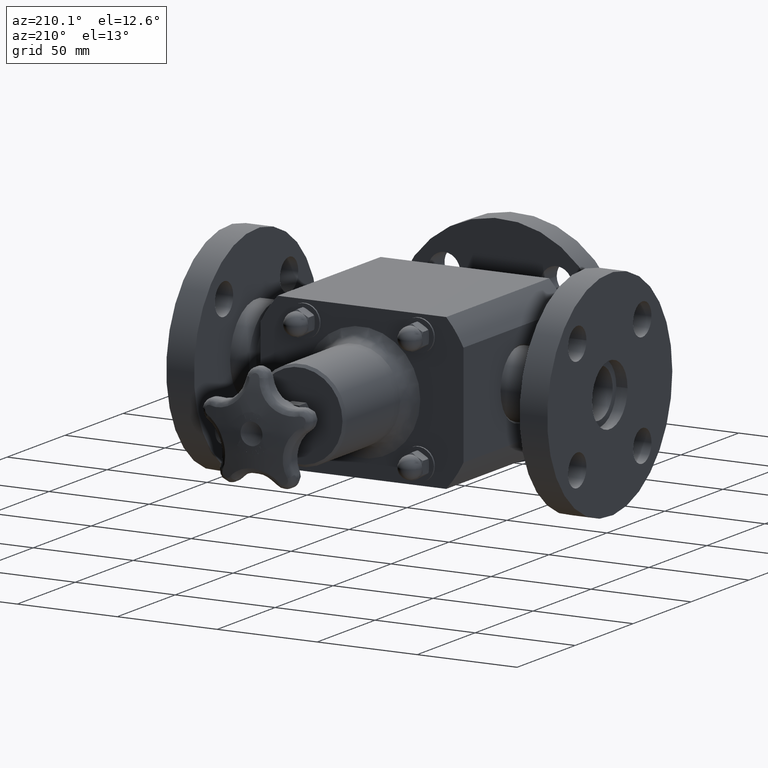
[diagram: clean part render]
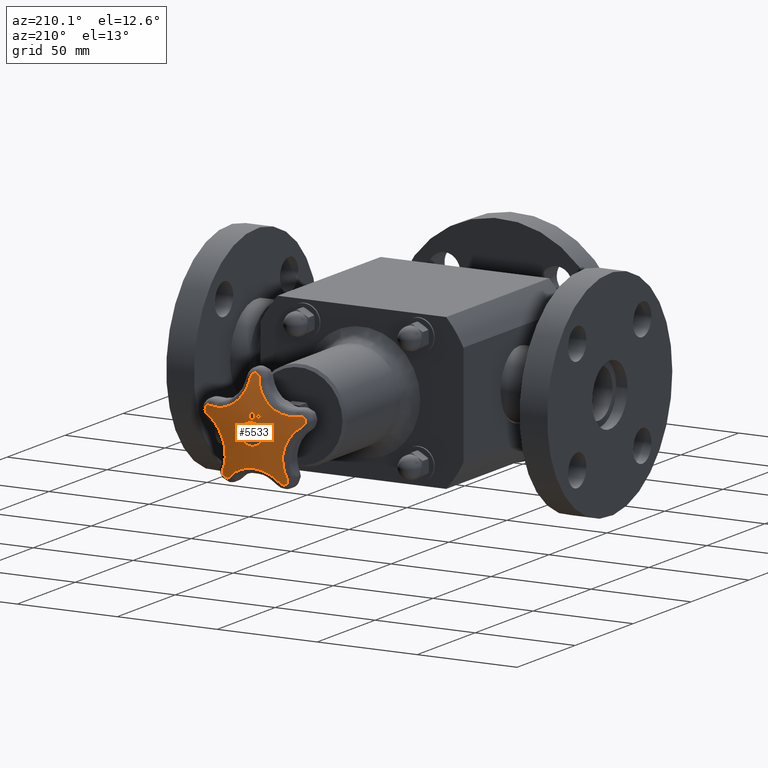
[diagram: same view with one face highlighted and labeled with its STEP entity id]
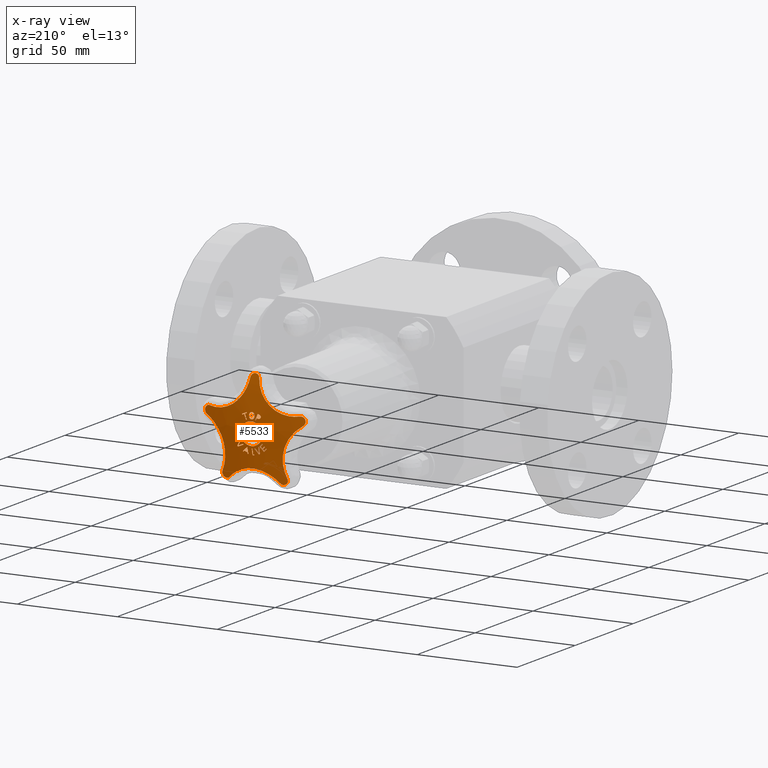
[diagram: x-ray of the same camera — body ghosted, the highlighted face saturated]
A machine part, auxiliary view. The second image highlights one B-rep face of the part: STEP entity #5533.
The next image is the same camera in x-ray: the body ghosted, the highlighted face saturated — about 0% of this face is hidden behind the body in this view.
In plain terms, the highlighted spherical surface has radius 101.6 mm.
Its self-contained STEP definition (entity closure, byte-faithful):
#2344=CARTESIAN_POINT('',(0.085862900185205,7.240578033837450,-0.334336098257463));
#2345=VERTEX_POINT('',#2344);
#2352=CARTESIAN_POINT('',(0.080862571524468,7.238070388788940,-0.364135061299997));
#2353=VERTEX_POINT('',#2352);
#2354=CARTESIAN_POINT('',(0.138077283113865,3.255499999999999,-0.023169658459774));
#2355=DIRECTION('',(0.986211736099962,8.119753E-016,-0.165488403154721));
#2356=DIRECTION('',(0.165488403154721,1.362512E-016,0.986211736099962));
#2357=AXIS2_PLACEMENT_3D('',#2354,#2355,#2356);
#2358=CIRCLE('',#2357,3.997548977913186);
#2359=EDGE_CURVE('',#2353,#2345,#2358,.T.);
#2377=CARTESIAN_POINT('',(0.066931145986269,7.238560100352848,-0.361597094393903));
#2378=VERTEX_POINT('',#2377);
#2379=CARTESIAN_POINT('',(-0.061608234058831,3.255499999999999,-0.338180345563004));
#2380=DIRECTION('',(-0.179225881333302,0.0,-0.983807950496590));
#2381=DIRECTION('',(0.0,-1.0,0.0));
#2382=AXIS2_PLACEMENT_3D('',#2379,#2380,#2381);
#2383=CIRCLE('',#2382,3.985202438944732);
#2384=EDGE_CURVE('',#2378,#2353,#2383,.T.);
#2402=CARTESIAN_POINT('',(0.086359266902224,7.247345606544358,-0.240230577846814));
#2403=VERTEX_POINT('',#2402);
#2404=CARTESIAN_POINT('',(0.121696449326063,3.255499999999999,-0.019480935927101));
#2405=DIRECTION('',(-0.987428598717144,-8.129772E-016,0.158065690254078));
#2406=DIRECTION('',(-0.158065690254078,-1.301398E-016,-0.987428598717144));
#2407=AXIS2_PLACEMENT_3D('',#2404,#2405,#2406);
#2408=CIRCLE('',#2407,3.998100857576862);
#2409=EDGE_CURVE('',#2403,#2378,#2408,.T.);
#2427=CARTESIAN_POINT('',(0.178491128782153,7.238560100243761,-0.321516958794137));
#2428=VERTEX_POINT('',#2427);
#2429=CARTESIAN_POINT('',(-0.081379549747354,3.255499999999999,-0.092237461550080));
#2430=DIRECTION('',(0.661592173204071,0.0,0.749863851879202));
#2431=DIRECTION('',(0.0,1.0,0.0));
#2432=AXIS2_PLACEMENT_3D('',#2429,#2430,#2431);
#2433=CIRCLE('',#2432,3.998108255108873);
#2434=EDGE_CURVE('',#2428,#2403,#2433,.T.);
#2470=CARTESIAN_POINT('',(0.169360113250161,7.238070388702393,-0.332340564889027));
#2471=VERTEX_POINT('',#2470);
#2472=CARTESIAN_POINT('',(0.262739148876330,3.255499999999999,-0.221652121134104));
#2473=DIRECTION('',(0.764340282334966,0.0,-0.644813099122609));
#2474=DIRECTION('',(0.0,-1.0,0.0));
#2475=AXIS2_PLACEMENT_3D('',#2472,#2473,#2474);
#2476=CIRCLE('',#2475,3.985202438627741);
#2477=EDGE_CURVE('',#2471,#2428,#2476,.T.);
#2495=CARTESIAN_POINT('',(0.146539084429398,7.240578033778148,-0.312536976105991));
#2496=VERTEX_POINT('',#2495);
#2497=CARTESIAN_POINT('',(-0.091762441742965,3.255499999999999,-0.105744133077217));
#2498=DIRECTION('',(-0.655409775395539,0.0,-0.755273477831686));
#2499=DIRECTION('',(0.0,-1.0,0.0));
#2500=AXIS2_PLACEMENT_3D('',#2497,#2498,#2499);
#2501=CIRCLE('',#2500,3.997548978137118);
#2502=EDGE_CURVE('',#2496,#2471,#2501,.T.);
#2520=CARTESIAN_POINT('',(0.116200988857740,3.255499999999999,-0.323436538421052));
#2521=DIRECTION('',(0.338111065893150,0.0,-0.941106214579735));
#2522=DIRECTION('',(0.0,-1.0,0.0));
#2523=AXIS2_PLACEMENT_3D('',#2520,#2521,#2522);
#2524=CIRCLE('',#2523,3.985208418113498);
#2525=EDGE_CURVE('',#2345,#2496,#2524,.T.);
#2555=CARTESIAN_POINT('',(0.037834369669127,7.246204436490724,0.269901206082852));
#2556=VERTEX_POINT('',#2555);
#2563=CARTESIAN_POINT('',(-0.000813251585516,7.247463335806677,0.253432563411025));
#2564=VERTEX_POINT('',#2563);
#2565=CARTESIAN_POINT('',(-0.000813251585516,7.247463335806677,0.253432563411025));
#2566=CARTESIAN_POINT('',(0.004822604549687,7.247463267161415,0.253451729844246));
#2567=CARTESIAN_POINT('',(0.010434056143412,7.247408968571550,0.254137147028970));
#2568=CARTESIAN_POINT('',(0.019829419967582,7.247191776701514,0.256945437338924));
#2569=CARTESIAN_POINT('',(0.023603879105445,7.247063271092422,0.258616838560288));
#2570=CARTESIAN_POINT('',(0.031162797321001,7.246707503911846,0.263275608997045));
#2571=CARTESIAN_POINT('',(0.034718544485050,7.246475224151669,0.266334166676060));
#2572=CARTESIAN_POINT('',(0.037834369669127,7.246204436490725,0.269901206082852));
#2573=B_SPLINE_CURVE_WITH_KNOTS('',3,(#2565,#2566,#2567,#2568,#2569,#2570,#2571,#2572),.UNSPECIFIED.,.F.,.U.,(4,2,2,4),(0.0,0.042945472093289,0.074729953679080,0.111130521126663),.UNSPECIFIED.);
#2574=EDGE_CURVE('',#2564,#2556,#2573,.T.);
#2607=CARTESIAN_POINT('',(0.051972176469603,7.242648590963244,0.316140801626153));
#2608=VERTEX_POINT('',#2607);
#2615=CARTESIAN_POINT('',(0.037834369669127,7.246204436490724,0.269901206082852));
#2616=CARTESIAN_POINT('',(0.041442739555285,7.245886429832898,0.274097371770596));
#2617=CARTESIAN_POINT('',(0.044216393332111,7.245526143654532,0.278867364485765));
#2618=CARTESIAN_POINT('',(0.051175872144367,7.244247534047898,0.295695352673442));
#2619=CARTESIAN_POINT('',(0.052000310715346,7.243304176149833,0.307867975918426));
#2620=CARTESIAN_POINT('',(0.051972176469603,7.242648590963243,0.316140801626153));
#2621=B_SPLINE_CURVE_WITH_KNOTS('',3,(#2615,#2616,#2617,#2618,#2619,#2620),.UNSPECIFIED.,.F.,.U.,(4,2,4),(0.0,0.042240697270331,0.139117363804144),.UNSPECIFIED.);
#2622=EDGE_CURVE('',#2556,#2608,#2621,.T.);
#2648=CARTESIAN_POINT('',(0.037422621985941,7.238875481075143,0.362380082417698));
#2649=VERTEX_POINT('',#2648);
#2656=CARTESIAN_POINT('',(0.051972176469603,7.242648590963243,0.316140801626153));
#2657=CARTESIAN_POINT('',(0.051955724861651,7.242265235014525,0.320978368143260));
#2658=CARTESIAN_POINT('',(0.051649887753160,7.241873160763516,0.325860197870603));
#2659=CARTESIAN_POINT('',(0.050134657362977,7.241046460787354,0.336059631335725));
#2660=CARTESIAN_POINT('',(0.048942330808368,7.240679768741240,0.340537076610656));
#2661=CARTESIAN_POINT('',(0.045132529339025,7.239814489793273,0.351068251626343));
#2662=CARTESIAN_POINT('',(0.041865078415878,7.239314249290122,0.357098260899482));
#2663=CARTESIAN_POINT('',(0.037422621985941,7.238875481075143,0.362380082417698));
#2664=B_SPLINE_CURVE_WITH_KNOTS('',3,(#2656,#2657,#2658,#2659,#2660,#2661,#2662,#2663),.UNSPECIFIED.,.F.,.U.,(4,2,2,4),(0.0,0.036978033263811,0.078812994269673,0.145814753845857),.UNSPECIFIED.);
#2665=EDGE_CURVE('',#2608,#2649,#2664,.T.);
#2693=CARTESIAN_POINT('',(-0.001238542349028,7.237552846207734,0.378488567887761));
#2694=VERTEX_POINT('',#2693);
#2701=CARTESIAN_POINT('',(0.037422621985941,7.238875481075143,0.362380082417698));
#2702=CARTESIAN_POINT('',(0.034954443929444,7.238644692501274,0.365171856276012));
#2703=CARTESIAN_POINT('',(0.032197988751055,7.238440415363388,0.367645041378230));
#2704=CARTESIAN_POINT('',(0.025433171661510,7.238054380883789,0.372335971569166));
#2705=CARTESIAN_POINT('',(0.021382576080444,7.237892027163673,0.374321631798850));
#2706=CARTESIAN_POINT('',(0.014161922593866,7.237697132621297,0.376716303028089));
#2707=CARTESIAN_POINT('',(0.011126297743760,7.237640822220747,0.377412789087581));
#2708=CARTESIAN_POINT('',(0.004967186895543,7.237568654773591,0.378304358121796));
#2709=CARTESIAN_POINT('',(0.001864839243263,7.237552808314177,0.378499121875411));
#2710=CARTESIAN_POINT('',(-0.001238542349028,7.237552846207734,0.378488567887761));
#2711=B_SPLINE_CURVE_WITH_KNOTS('',3,(#2701,#2702,#2703,#2704,#2705,#2706,#2707,#2708,#2709,#2710),.UNSPECIFIED.,.F.,.U.,(4,2,2,2,4),(0.0,0.028449418287417,0.062797366334246,0.086669104210055,0.110412733579470),.UNSPECIFIED.);
#2712=EDGE_CURVE('',#2649,#2694,#2711,.T.);
#2898=CARTESIAN_POINT('',(-0.039886494311886,7.238875481072098,0.362117169387377));
#2899=VERTEX_POINT('',#2898);
#2906=CARTESIAN_POINT('',(-0.001238542349028,7.237552846207734,0.378488567887761));
#2907=CARTESIAN_POINT('',(-0.006745334190301,7.237552913447911,0.378469840376703));
#2908=CARTESIAN_POINT('',(-0.012222719771296,7.237603190919956,0.377803010782852));
#2909=CARTESIAN_POINT('',(-0.022169110236769,7.237836259202795,0.374873454632415));
#2910=CARTESIAN_POINT('',(-0.025880772573744,7.237983982792515,0.373045650941542));
#2911=CARTESIAN_POINT('',(-0.032976239086440,7.238326456239560,0.368822005397032));
#2912=CARTESIAN_POINT('',(-0.036677483482780,7.238576120274292,0.365763676003977));
#2913=CARTESIAN_POINT('',(-0.039886494311886,7.238875481072098,0.362117169387377));
#2914=B_SPLINE_CURVE_WITH_KNOTS('',3,(#2906,#2907,#2908,#2909,#2910,#2911,#2912,#2913),.UNSPECIFIED.,.F.,.U.,(4,2,2,4),(0.0,0.041961996486355,0.079020325656231,0.132098515306939),.UNSPECIFIED.);
#2915=EDGE_CURVE('',#2694,#2899,#2914,.T.);
#2941=CARTESIAN_POINT('',(-0.054121214575591,7.242648590959069,0.315779998964418));
#2942=VERTEX_POINT('',#2941);
#2949=CARTESIAN_POINT('',(-0.039886494311886,7.238875481072099,0.362117169387377));
#2950=CARTESIAN_POINT('',(-0.043384531614646,7.239215540252459,0.357991135129825));
#2951=CARTESIAN_POINT('',(-0.046110522559894,7.239601304155912,0.353327026506886));
#2952=CARTESIAN_POINT('',(-0.049655140330856,7.240287322165350,0.344989572698872));
#2953=CARTESIAN_POINT('',(-0.051408401706375,7.240680648419752,0.340203251638014));
#2954=CARTESIAN_POINT('',(-0.053714336300571,7.241694761028933,0.327721858865082));
#2955=CARTESIAN_POINT('',(-0.054141415064124,7.242177878462815,0.321719917253610));
#2956=CARTESIAN_POINT('',(-0.054121214575591,7.242648590959069,0.315779998964418));
#2957=B_SPLINE_CURVE_WITH_KNOTS('',3,(#2949,#2950,#2951,#2952,#2953,#2954,#2955,#2956),.UNSPECIFIED.,.F.,.U.,(4,2,2,4),(0.0,0.041300163745689,0.069239721804254,0.093823977580811),.UNSPECIFIED.);
#2958=EDGE_CURVE('',#2899,#2942,#2957,.T.);
#2984=CARTESIAN_POINT('',(-0.039571990800144,7.246205379604827,0.269637962344317));
#2985=VERTEX_POINT('',#2984);
#2992=CARTESIAN_POINT('',(-0.054121214575591,7.242648590959068,0.315779998964418));
#2993=CARTESIAN_POINT('',(-0.054104973183969,7.243027048439476,0.311004246190808));
#2994=CARTESIAN_POINT('',(-0.053791585087135,7.243402200783876,0.306211457940531));
#2995=CARTESIAN_POINT('',(-0.052375519715101,7.244143410979319,0.296655576028872));
#2996=CARTESIAN_POINT('',(-0.051258684496635,7.244507467278866,0.291916990166382));
#2997=CARTESIAN_POINT('',(-0.047377403862628,7.245352193214816,0.280860112488069));
#2998=CARTESIAN_POINT('',(-0.044132654634136,7.245811607413358,0.274796561836270));
#2999=CARTESIAN_POINT('',(-0.039571990800144,7.246205379604828,0.269637962344317));
#3000=B_SPLINE_CURVE_WITH_KNOTS('',3,(#2992,#2993,#2994,#2995,#2996,#2997,#2998,#2999),.UNSPECIFIED.,.F.,.U.,(4,2,2,4),(0.0,0.036505533163791,0.073822024429602,0.126837533468264),.UNSPECIFIED.);
#3001=EDGE_CURVE('',#2942,#2985,#3000,.T.);
#3028=CARTESIAN_POINT('',(-0.039571990800144,7.246205379604827,0.269637962344317));
#3029=CARTESIAN_POINT('',(-0.036994618978140,7.246426649193219,0.266741374653484));
#3030=CARTESIAN_POINT('',(-0.034125944551206,7.246624226597591,0.264155087526019));
#3031=CARTESIAN_POINT('',(-0.028127958870900,7.246941902899272,0.260022999604723));
#3032=CARTESIAN_POINT('',(-0.024119800176993,7.247119835051820,0.257727462092389));
#3033=CARTESIAN_POINT('',(-0.015614631027450,7.247330482346445,0.255058899401249));
#3034=CARTESIAN_POINT('',(-0.012615830697539,7.247382732516449,0.254406267976287));
#3035=CARTESIAN_POINT('',(-0.006666959610794,7.247448427235687,0.253597873925736));
#3036=CARTESIAN_POINT('',(-0.003741704705230,7.247463371475511,0.253422604320575));
#3037=CARTESIAN_POINT('',(-0.000813251586152,7.247463335806677,0.253432563411022));
#3038=B_SPLINE_CURVE_WITH_KNOTS('',3,(#3028,#3029,#3030,#3031,#3032,#3033,#3034,#3035,#3036,#3037),.UNSPECIFIED.,.F.,.U.,(4,2,2,2,4),(0.0,0.029592715149351,0.055552496815722,0.069221283901438,0.082236559754027),.UNSPECIFIED.);
#3039=EDGE_CURVE('',#2985,#2564,#3038,.T.);
#3313=CARTESIAN_POINT('',(-0.247118300170071,7.242930202010448,-0.198325313099392));
#3314=VERTEX_POINT('',#3313);
#3321=CARTESIAN_POINT('',(-0.207827658530659,7.243059962457521,-0.237008882018032));
#3322=VERTEX_POINT('',#3321);
#3323=CARTESIAN_POINT('',(-0.220785948703937,3.255499999999999,-0.224250808083117));
#3324=DIRECTION('',(0.701580297701931,0.0,0.712590405405847));
#3325=DIRECTION('',(0.0,1.0,0.0));
#3326=AXIS2_PLACEMENT_3D('',#3323,#3324,#3325);
#3327=CIRCLE('',#3326,3.987601426914302);
#3328=EDGE_CURVE('',#3322,#3314,#3327,.T.);
#3346=CARTESIAN_POINT('',(-0.176580613442939,7.246324840990899,-0.205271467783728));
#3347=VERTEX_POINT('',#3346);
#3348=CARTESIAN_POINT('',(0.012958290173279,3.255499999999999,-0.012758073934916));
#3349=DIRECTION('',(-0.712590405405847,0.0,0.701580297701931));
#3350=DIRECTION('',(0.0,1.0,0.0));
#3351=AXIS2_PLACEMENT_3D('',#3348,#3349,#3350);
#3352=CIRCLE('',#3351,3.999958664069575);
#3353=EDGE_CURVE('',#3347,#3322,#3352,.T.);
#3371=CARTESIAN_POINT('',(-0.218712377317300,7.246156275729468,-0.163790674304834));
#3372=VERTEX_POINT('',#3371);
#3373=CARTESIAN_POINT('',(-0.189538903616218,3.255499999999999,-0.192513393848812));
#3374=DIRECTION('',(-0.701580297701931,0.0,-0.712590405405848));
#3375=DIRECTION('',(0.0,-1.0,0.0));
#3376=AXIS2_PLACEMENT_3D('',#3373,#3374,#3375);
#3377=CIRCLE('',#3376,3.990866271526118);
#3378=EDGE_CURVE('',#3372,#3347,#3377,.T.);
#3396=CARTESIAN_POINT('',(-0.208751528883223,7.247092069880929,-0.153673507321846));
#3397=VERTEX_POINT('',#3396);
#3398=CARTESIAN_POINT('',(-0.029173473701081,3.255499999999999,0.028722719543978));
#3399=DIRECTION('',(-0.712590405405848,0.0,0.701580297701931));
#3400=DIRECTION('',(0.0,1.0,0.0));
#3401=AXIS2_PLACEMENT_3D('',#3398,#3399,#3400);
#3402=CIRCLE('',#3401,3.999790483739644);
#3403=EDGE_CURVE('',#3397,#3372,#3402,.T.);
#3421=CARTESIAN_POINT('',(-0.155255276069068,7.247156082813489,-0.206343199041757));
#3422=VERTEX_POINT('',#3421);
#3423=CARTESIAN_POINT('',(-0.179578055182141,3.255499999999999,-0.182396226865824));
#3424=DIRECTION('',(0.701580297701931,0.0,0.712590405405847));
#3425=DIRECTION('',(0.0,1.0,0.0));
#3426=AXIS2_PLACEMENT_3D('',#3423,#3424,#3425);
#3427=CIRCLE('',#3426,3.991802016448476);
#3428=EDGE_CURVE('',#3422,#3397,#3427,.T.);
#3446=CARTESIAN_POINT('',(-0.239444912833797,7.237646073155508,-0.291854048747285));
#3447=VERTEX_POINT('',#3446);
#3448=CARTESIAN_POINT('',(0.024322779113074,3.255499999999999,-0.023946972175933));
#3449=DIRECTION('',(0.712590405405848,0.0,-0.701580297701931));
#3450=DIRECTION('',(0.0,-1.0,0.0));
#3451=AXIS2_PLACEMENT_3D('',#3448,#3449,#3450);
#3452=CIRCLE('',#3451,3.999854365466301);
#3453=EDGE_CURVE('',#3447,#3422,#3452,.T.);
#3471=CARTESIAN_POINT('',(-0.292941165647952,7.237581907347239,-0.239184357027373));
#3472=VERTEX_POINT('',#3471);
#3473=CARTESIAN_POINT('',(-0.263767691946870,3.255499999999999,-0.267907076571352));
#3474=DIRECTION('',(-0.701580297701931,0.0,-0.712590405405847));
#3475=DIRECTION('',(0.0,-1.0,0.0));
#3476=AXIS2_PLACEMENT_3D('',#3473,#3474,#3475);
#3477=CIRCLE('',#3476,3.982292355290859);
#3478=EDGE_CURVE('',#3472,#3447,#3477,.T.);
#3496=CARTESIAN_POINT('',(-0.282980317213875,7.238896837187415,-0.229067190044386));
#3497=VERTEX_POINT('',#3496);
#3498=CARTESIAN_POINT('',(-0.029173473701081,3.255499999999999,0.028722719543978));
#3499=DIRECTION('',(-0.712590405405848,0.0,0.701580297701931));
#3500=DIRECTION('',(0.0,1.0,0.0));
#3501=AXIS2_PLACEMENT_3D('',#3498,#3499,#3500);
#3502=CIRCLE('',#3501,3.999790483739644);
#3503=EDGE_CURVE('',#3497,#3472,#3502,.T.);
#3521=CARTESIAN_POINT('',(-0.240848553339515,7.239065709633237,-0.270547983523279));
#3522=VERTEX_POINT('',#3521);
#3523=CARTESIAN_POINT('',(-0.253806843512794,3.255499999999999,-0.257789909588364));
#3524=DIRECTION('',(0.701580297701931,0.0,0.712590405405847));
#3525=DIRECTION('',(0.0,1.0,0.0));
#3526=AXIS2_PLACEMENT_3D('',#3523,#3524,#3525);
#3527=CIRCLE('',#3526,3.983607215665281);
#3528=EDGE_CURVE('',#3522,#3497,#3527,.T.);
#3546=CARTESIAN_POINT('',(-0.217788506964735,7.241914037971873,-0.247126049001020));
#3547=VERTEX_POINT('',#3546);
#3548=CARTESIAN_POINT('',(0.012958290173279,3.255499999999999,-0.012758073934915));
#3549=DIRECTION('',(-0.712590405405848,0.0,0.701580297701930));
#3550=DIRECTION('',(0.0,1.0,0.0));
#3551=AXIS2_PLACEMENT_3D('',#3548,#3549,#3550);
#3552=CIRCLE('',#3551,3.999958664069575);
#3553=EDGE_CURVE('',#3547,#3522,#3552,.T.);
#3571=CARTESIAN_POINT('',(-0.257079148604147,7.241784240222977,-0.208442480082380));
#3572=VERTEX_POINT('',#3571);
#3573=CARTESIAN_POINT('',(-0.230746797138014,3.255499999999999,-0.234367975066105));
#3574=DIRECTION('',(-0.701580297701931,0.0,-0.712590405405848));
#3575=DIRECTION('',(0.0,-1.0,0.0));
#3576=AXIS2_PLACEMENT_3D('',#3573,#3574,#3575);
#3577=CIRCLE('',#3576,3.986455514347798);
#3578=EDGE_CURVE('',#3572,#3547,#3577,.T.);
#3596=CARTESIAN_POINT('',(-0.026332351466133,3.255499999999999,0.025925494983724));
#3597=DIRECTION('',(-0.712590405405848,0.0,0.701580297701931));
#3598=DIRECTION('',(0.0,1.0,0.0));
#3599=AXIS2_PLACEMENT_3D('',#3596,#3597,#3598);
#3600=CIRCLE('',#3599,3.999829305854953);
#3601=EDGE_CURVE('',#3314,#3572,#3600,.T.);
#3623=CARTESIAN_POINT('',(0.104679989358758,7.237501420719624,0.364289425065760));
#3624=VERTEX_POINT('',#3623);
#3631=CARTESIAN_POINT('',(0.193260657033249,7.237499064924952,0.326088585172620));
#3632=VERTEX_POINT('',#3631);
#3633=CARTESIAN_POINT('',(0.148881029224556,3.255499999999999,0.345227513574775));
#3634=DIRECTION('',(0.395999965100261,0.0,0.918250525532435));
#3635=DIRECTION('',(0.0,1.0,0.0));
#3636=AXIS2_PLACEMENT_3D('',#3633,#3634,#3635);
#3637=CIRCLE('',#3636,3.982292355290859);
#3638=EDGE_CURVE('',#3632,#3624,#3637,.T.);
#3663=CARTESIAN_POINT('',(0.099057688326098,7.238816377129186,0.351252350992700));
#3664=VERTEX_POINT('',#3663);
#3671=CARTESIAN_POINT('',(-0.044201039865797,3.255499999999999,0.019061911490985));
#3672=DIRECTION('',(-0.918250525532435,-7.560210E-016,0.395999965100260));
#3673=DIRECTION('',(-0.395999965100260,-3.260377E-016,-0.918250525532435));
#3674=AXIS2_PLACEMENT_3D('',#3671,#3672,#3673);
#3675=CIRCLE('',#3674,3.999710353463748);
#3676=EDGE_CURVE('',#3624,#3664,#3675,.T.);
#3696=CARTESIAN_POINT('',(0.136025829875735,7.239099428197434,0.335309661763104));
#3697=VERTEX_POINT('',#3696);
#3704=CARTESIAN_POINT('',(0.143258728191896,3.255499999999999,0.332190439501715));
#3705=DIRECTION('',(-0.395999965100261,0.0,-0.918250525532434));
#3706=DIRECTION('',(0.0,-1.0,0.0));
#3707=AXIS2_PLACEMENT_3D('',#3704,#3705,#3706);
#3708=CIRCLE('',#3707,3.983607215665281);
#3709=EDGE_CURVE('',#3664,#3697,#3708,.T.);
#3729=CARTESIAN_POINT('',(0.094128134509065,7.247294244967612,0.238156671410436));
#3730=VERTEX_POINT('',#3729);
#3737=CARTESIAN_POINT('',(-0.007232898316161,3.255499999999999,0.003119222261388));
#3738=DIRECTION('',(-0.918250525532435,-7.560210E-016,0.395999965100261));
#3739=DIRECTION('',(-0.395999965100261,-3.260377E-016,-0.918250525532435));
#3740=AXIS2_PLACEMENT_3D('',#3737,#3738,#3739);
#3741=CIRCLE('',#3740,3.999992244446786);
#3742=EDGE_CURVE('',#3697,#3730,#3741,.T.);
#3762=CARTESIAN_POINT('',(0.108772519084283,7.247293856457104,0.231841209976490));
#3763=VERTEX_POINT('',#3762);
#3770=CARTESIAN_POINT('',(0.101361032825227,3.255499999999999,0.235037449149048));
#3771=DIRECTION('',(-0.395999965100260,0.0,-0.918250525532435));
#3772=DIRECTION('',(0.0,-1.0,0.0));
#3773=AXIS2_PLACEMENT_3D('',#3770,#3771,#3772);
#3774=CIRCLE('',#3773,3.991802016448476);
#3775=EDGE_CURVE('',#3730,#3763,#3774,.T.);
#3795=CARTESIAN_POINT('',(0.150670214450953,7.239099038887709,0.328994200329157));
#3796=VERTEX_POINT('',#3795);
#3803=CARTESIAN_POINT('',(0.007411486259057,3.255499999999999,-0.003196239172558));
#3804=DIRECTION('',(0.918250525532434,7.560210E-016,-0.395999965100261));
#3805=DIRECTION('',(0.395999965100261,3.260377E-016,0.918250525532434));
#3806=AXIS2_PLACEMENT_3D('',#3803,#3804,#3805);
#3807=CIRCLE('',#3806,3.999991856732535);
#3808=EDGE_CURVE('',#3763,#3796,#3807,.T.);
#3828=CARTESIAN_POINT('',(0.187638356000589,7.238814022112199,0.313051511099560));
#3829=VERTEX_POINT('',#3828);
#3836=CARTESIAN_POINT('',(0.143258728191896,3.255499999999999,0.332190439501715));
#3837=DIRECTION('',(-0.395999965100261,0.0,-0.918250525532435));
#3838=DIRECTION('',(0.0,-1.0,0.0));
#3839=AXIS2_PLACEMENT_3D('',#3836,#3837,#3838);
#3840=CIRCLE('',#3839,3.983607215665281);
#3841=EDGE_CURVE('',#3796,#3829,#3840,.T.);
#3860=CARTESIAN_POINT('',(0.044379627808694,3.255499999999999,-0.019138928402155));
#3861=DIRECTION('',(0.918250525532435,7.560210E-016,-0.395999965100259));
#3862=DIRECTION('',(0.395999965100259,3.260377E-016,0.918250525532435));
#3863=AXIS2_PLACEMENT_3D('',#3860,#3861,#3862);
#3864=CIRCLE('',#3863,3.999708008099489);
#3865=EDGE_CURVE('',#3829,#3632,#3864,.T.);
#3964=CARTESIAN_POINT('',(-0.132776476717602,7.247152316888535,-0.221545002897485));
#3965=VERTEX_POINT('',#3964);
#3972=CARTESIAN_POINT('',(-0.141106922486276,7.239658741024816,-0.326447488490870));
#3973=VERTEX_POINT('',#3972);
#3974=CARTESIAN_POINT('',(-0.114461481346888,3.255499999999999,0.009089538322840));
#3975=DIRECTION('',(0.996861755361221,8.207438E-016,-0.079162116559279));
#3976=DIRECTION('',(0.079162116559279,6.517635E-017,0.996861755361221));
#3977=AXIS2_PLACEMENT_3D('',#3974,#3975,#3976);
#3978=CIRCLE('',#3977,3.998351654067081);
#3979=EDGE_CURVE('',#3973,#3965,#3978,.T.);
#3997=CARTESIAN_POINT('',(-0.071391562909485,7.247171847508763,-0.247909472492114));
#3998=VERTEX_POINT('',#3997);
#3999=CARTESIAN_POINT('',(0.083150511259558,3.255499999999999,-0.073809704991098));
#4000=DIRECTION('',(-0.747864056465855,0.0,0.663851905959784));
#4001=DIRECTION('',(0.0,1.0,0.0));
#4002=AXIS2_PLACEMENT_3D('',#3999,#4000,#4001);
#4003=CIRCLE('',#4002,3.998454466406539);
#4004=EDGE_CURVE('',#3998,#3973,#4003,.T.);
#4022=CARTESIAN_POINT('',(-0.055754940032600,7.246998131883167,-0.254625312636307));
#4023=VERTEX_POINT('',#4022);
#4024=CARTESIAN_POINT('',(-0.101011795140336,3.255499999999999,-0.235187752062933));
#4025=DIRECTION('',(0.394635554071923,0.0,0.918837732933485));
#4026=DIRECTION('',(0.0,1.0,0.0));
#4027=AXIS2_PLACEMENT_3D('',#4024,#4025,#4026);
#4028=CIRCLE('',#4027,3.991802016448476);
#4029=EDGE_CURVE('',#4023,#3998,#4028,.T.);
#4047=CARTESIAN_POINT('',(-0.140907158403206,7.237784076964298,-0.348652696916783));
#4048=VERTEX_POINT('',#4047);
#4049=CARTESIAN_POINT('',(0.096057099062327,3.255499999999999,-0.086990350077204));
#4050=DIRECTION('',(0.741222642945153,0.0,-0.671259259590065));
#4051=DIRECTION('',(0.0,-1.0,0.0));
#4052=AXIS2_PLACEMENT_3D('',#4049,#4050,#4051);
#4053=CIRCLE('',#4052,3.997900162924680);
#4054=EDGE_CURVE('',#4048,#4023,#4053,.T.);
#4072=CARTESIAN_POINT('',(-0.156722485541541,7.237781975401068,-0.341860104313800));
#4073=VERTEX_POINT('',#4072);
#4074=CARTESIAN_POINT('',(-0.148368062214242,3.255499999999999,-0.345448281377658));
#4075=DIRECTION('',(-0.394635554071924,0.0,-0.918837732933484));
#4076=DIRECTION('',(0.0,-1.0,0.0));
#4077=AXIS2_PLACEMENT_3D('',#4074,#4075,#4076);
#4078=CIRCLE('',#4077,3.982292355290859);
#4079=EDGE_CURVE('',#4073,#4048,#4078,.T.);
#4097=CARTESIAN_POINT('',(-0.147698282548687,7.246978628851237,-0.215136172588455));
#4098=VERTEX_POINT('',#4097);
#4099=CARTESIAN_POINT('',(-0.131710197155652,3.255499999999999,0.009379282501568));
#4100=DIRECTION('',(-0.997474063033574,-8.212479E-016,0.071031637847470));
#4101=DIRECTION('',(-0.071031637847470,-5.848231E-017,-0.997474063033574));
#4102=AXIS2_PLACEMENT_3D('',#4099,#4100,#4101);
#4103=CIRCLE('',#4102,3.997819962557716);
#4104=EDGE_CURVE('',#4098,#4073,#4103,.T.);
#4122=CARTESIAN_POINT('',(-0.101011795140336,3.255499999999999,-0.235187752062934));
#4123=DIRECTION('',(0.394635554071923,0.0,0.918837732933485));
#4124=DIRECTION('',(0.0,1.0,0.0));
#4125=AXIS2_PLACEMENT_3D('',#4122,#4123,#4124);
#4126=CIRCLE('',#4125,3.991802016448476);
#4127=EDGE_CURVE('',#3965,#4098,#4126,.T.);
#4149=CARTESIAN_POINT('',(-0.069865805707583,7.247162659387477,0.248491414025746));
#4150=VERTEX_POINT('',#4149);
#4157=CARTESIAN_POINT('',(-0.084532147718003,7.247264063873193,0.242227113207305));
#4158=VERTEX_POINT('',#4157);
#4159=CARTESIAN_POINT('',(-0.100539922146022,3.255499999999999,0.235389858602194));
#4160=DIRECTION('',(0.392792028171763,0.0,-0.919627328108899));
#4161=DIRECTION('',(0.0,-1.0,0.0));
#4162=AXIS2_PLACEMENT_3D('',#4159,#4160,#4161);
#4163=CIRCLE('',#4162,3.991802016448476);
#4164=EDGE_CURVE('',#4158,#4150,#4163,.T.);
#4189=CARTESIAN_POINT('',(-0.117000849670735,7.237652665435395,0.358846694762692));
#4190=VERTEX_POINT('',#4189);
#4197=CARTESIAN_POINT('',(0.030674116438439,3.255499999999999,0.013101555423552));
#4198=DIRECTION('',(0.919627328108900,7.571545E-016,0.392792028171762));
#4199=DIRECTION('',(-0.392792028171762,-3.233965E-016,0.919627328108900));
#4200=AXIS2_PLACEMENT_3D('',#4197,#4198,#4199);
#4201=CIRCLE('',#4200,3.999860928560668);
#4202=EDGE_CURVE('',#4150,#4190,#4201,.T.);
#4222=CARTESIAN_POINT('',(-0.144723813227017,7.237791062296545,0.347005638337589));
#4223=VERTEX_POINT('',#4222);
#4230=CARTESIAN_POINT('',(-0.147674966109173,3.255499999999999,0.345745139339139));
#4231=DIRECTION('',(-0.392792028171761,0.0,0.919627328108900));
#4232=DIRECTION('',(0.0,1.0,0.0));
#4233=AXIS2_PLACEMENT_3D('',#4230,#4231,#4232);
#4234=CIRCLE('',#4233,3.982292355290859);
#4235=EDGE_CURVE('',#4190,#4223,#4234,.T.);
#4261=CARTESIAN_POINT('',(-0.170668187046200,7.238392332671244,0.327781995050034));
#4262=VERTEX_POINT('',#4261);
#4269=CARTESIAN_POINT('',(-0.144723813227017,7.237791062296545,0.347005638337589));
#4270=CARTESIAN_POINT('',(-0.150088261328743,7.237795762969324,0.344714370575644));
#4271=CARTESIAN_POINT('',(-0.155816045050098,7.237823287565297,0.341843284165148));
#4272=CARTESIAN_POINT('',(-0.163386369744128,7.237985173854673,0.336346581494136));
#4273=CARTESIAN_POINT('',(-0.167427829443187,7.238105667536205,0.332952450875756));
#4274=CARTESIAN_POINT('',(-0.170668187046200,7.238392332671243,0.327781995050034));
#4275=B_SPLINE_CURVE_WITH_KNOTS('',3,(#4269,#4270,#4271,#4272,#4273,#4274),.UNSPECIFIED.,.F.,.U.,(4,2,4),(0.0,0.044449644500484,0.071079555324561),.UNSPECIFIED.);
#4276=EDGE_CURVE('',#4223,#4262,#4275,.T.);
#4448=CARTESIAN_POINT('',(-0.172546135424807,7.240815390487375,0.295785512651345));
#4449=VERTEX_POINT('',#4448);
#4456=CARTESIAN_POINT('',(-0.170668187046200,7.238392332671243,0.327781995050034));
#4457=CARTESIAN_POINT('',(-0.172986087574705,7.238591167831975,0.324159065981218));
#4458=CARTESIAN_POINT('',(-0.174567491806920,7.238838750576291,0.320245416315974));
#4459=CARTESIAN_POINT('',(-0.176129629330606,7.239442814318247,0.311764074180628));
#4460=CARTESIAN_POINT('',(-0.175887094211249,7.239718772794618,0.308335133779386));
#4461=CARTESIAN_POINT('',(-0.175001277294213,7.240211349698701,0.302427671544135));
#4462=CARTESIAN_POINT('',(-0.173928522803417,7.240515328212925,0.299022037632057));
#4463=CARTESIAN_POINT('',(-0.172546135424807,7.240815390487374,0.295785512651345));
#4464=B_SPLINE_CURVE_WITH_KNOTS('',3,(#4456,#4457,#4458,#4459,#4460,#4461,#4462,#4463),.UNSPECIFIED.,.F.,.U.,(4,2,2,4),(0.0,0.032808337471925,0.065876100718766,0.113361042324126),.UNSPECIFIED.);
#4465=EDGE_CURVE('',#4262,#4449,#4464,.T.);
#4493=CARTESIAN_POINT('',(-0.152421846635914,7.243095568897899,0.275407261294860));
#4494=VERTEX_POINT('',#4493);
#4501=CARTESIAN_POINT('',(-0.172546135424807,7.240815390487375,0.295785512651345));
#4502=CARTESIAN_POINT('',(-0.171321928932311,7.241081117873359,0.292919329875214));
#4503=CARTESIAN_POINT('',(-0.169804261392699,7.241343863950835,0.290215418914446));
#4504=CARTESIAN_POINT('',(-0.165910493783788,7.241891779064991,0.284897251377496));
#4505=CARTESIAN_POINT('',(-0.163657217073233,7.242148699667298,0.282590003201545));
#4506=CARTESIAN_POINT('',(-0.158684575838197,7.242639217410807,0.278482510744069));
#4507=CARTESIAN_POINT('',(-0.155702157988003,7.242881831002915,0.276686491070644));
#4508=CARTESIAN_POINT('',(-0.152421846635914,7.243095568897899,0.275407261294860));
#4509=B_SPLINE_CURVE_WITH_KNOTS('',3,(#4501,#4502,#4503,#4504,#4505,#4506,#4507,#4508),.UNSPECIFIED.,.F.,.U.,(4,2,2,4),(0.0,0.023835253161564,0.050398261842090,0.082258015573386),.UNSPECIFIED.);
#4510=EDGE_CURVE('',#4449,#4494,#4509,.T.);
#4538=CARTESIAN_POINT('',(-0.114533366717586,7.244179920008203,0.278055037055049));
#4539=VERTEX_POINT('',#4538);
#4546=CARTESIAN_POINT('',(-0.152421846635914,7.243095568897898,0.275407261294860));
#4547=CARTESIAN_POINT('',(-0.149545358874611,7.243283458798840,0.274278789378132));
#4548=CARTESIAN_POINT('',(-0.146578636591118,7.243448267506801,0.273482909697009));
#4549=CARTESIAN_POINT('',(-0.136733843929603,7.243902980470305,0.272015981091796));
#4550=CARTESIAN_POINT('',(-0.131190118846064,7.244021826509042,0.272931617342635));
#4551=CARTESIAN_POINT('',(-0.123610109338996,7.244155761130767,0.274533252414455));
#4552=CARTESIAN_POINT('',(-0.118915137061151,7.244184566599570,0.276183491476069));
#4553=CARTESIAN_POINT('',(-0.114533366717586,7.244179920008203,0.278055037055049));
#4554=B_SPLINE_CURVE_WITH_KNOTS('',3,(#4546,#4547,#4548,#4549,#4550,#4551,#4552,#4553),.UNSPECIFIED.,.F.,.U.,(4,2,2,4),(0.0,0.023588710723971,0.075924731072629,0.159708716541644),.UNSPECIFIED.);
#4555=EDGE_CURVE('',#4494,#4539,#4554,.T.);
#4575=CARTESIAN_POINT('',(-0.102102747574608,7.244143834417176,0.283364413968241));
#4576=VERTEX_POINT('',#4575);
#4583=CARTESIAN_POINT('',(-0.118110522002626,3.255499999999999,0.276527159363129));
#4584=DIRECTION('',(0.392792028171763,0.0,-0.919627328108899));
#4585=DIRECTION('',(0.0,-1.0,0.0));
#4586=AXIS2_PLACEMENT_3D('',#4583,#4584,#4585);
#4587=CIRCLE('',#4586,3.988681816681650);
#4588=EDGE_CURVE('',#4539,#4576,#4587,.T.);
#4607=CARTESIAN_POINT('',(0.016007774428019,3.255499999999999,0.006837254605111));
#4608=DIRECTION('',(-0.919627328108900,-7.571545E-016,-0.392792028171761));
#4609=DIRECTION('',(0.392792028171761,3.233965E-016,-0.919627328108900));
#4610=AXIS2_PLACEMENT_3D('',#4607,#4608,#4609);
#4611=CIRCLE('',#4610,3.999962125209104);
#4612=EDGE_CURVE('',#4576,#4158,#4611,.T.);
#4843=CARTESIAN_POINT('',(-0.025446717491286,7.239118720077395,-0.360741399922221));
#4844=VERTEX_POINT('',#4843);
#4851=CARTESIAN_POINT('',(-0.015977407253333,7.247295876022474,-0.255559008112469));
#4852=VERTEX_POINT('',#4851);
#4853=CARTESIAN_POINT('',(0.006973418085274,3.255499999999999,-0.000627799559720));
#4854=DIRECTION('',(-0.995971991168664,-8.200112E-016,0.089664891722048));
#4855=DIRECTION('',(-0.089664891722048,-7.382358E-017,-0.995971991168664));
#4856=AXIS2_PLACEMENT_3D('',#4853,#4854,#4855);
#4857=CIRCLE('',#4856,3.999993872158797);
#4858=EDGE_CURVE('',#4852,#4844,#4857,.T.);
#4876=CARTESIAN_POINT('',(-0.003483366237258,7.247254161384002,-0.256683815682171));
#4877=VERTEX_POINT('',#4876);
#4878=CARTESIAN_POINT('',(-0.022950825338607,3.255499999999999,-0.254931208552750));
#4879=DIRECTION('',(0.089664891722049,0.0,0.995971991168664));
#4880=DIRECTION('',(0.0,1.0,0.0));
#4881=AXIS2_PLACEMENT_3D('',#4878,#4879,#4880);
#4882=CIRCLE('',#4881,3.991802016448476);
#4883=EDGE_CURVE('',#4877,#4852,#4882,.T.);
#4901=CARTESIAN_POINT('',(-0.014077484044912,7.237918389468891,-0.374360248507998));
#4902=VERTEX_POINT('',#4901);
#4903=CARTESIAN_POINT('',(0.019467459101349,3.255499999999999,-0.001752607129422));
#4904=DIRECTION('',(0.995971991168664,8.200112E-016,-0.089664891722048));
#4905=DIRECTION('',(0.089664891722048,7.382358E-017,0.995971991168664));
#4906=AXIS2_PLACEMENT_3D('',#4903,#4904,#4905);
#4907=CIRCLE('',#4906,3.999952243015458);
#4908=EDGE_CURVE('',#4902,#4877,#4907,.T.);
#4926=CARTESIAN_POINT('',(-0.053012402560124,7.237918389467350,-0.370855034221021));
#4927=VERTEX_POINT('',#4926);
#4928=CARTESIAN_POINT('',(-0.033544943146261,3.255499999999999,-0.372607641378577));
#4929=DIRECTION('',(-0.089664891722049,0.0,-0.995971991168664));
#4930=DIRECTION('',(0.0,-1.0,0.0));
#4931=AXIS2_PLACEMENT_3D('',#4928,#4929,#4930);
#4932=CIRCLE('',#4931,3.982466356716100);
#4933=EDGE_CURVE('',#4927,#4902,#4932,.T.);
#4951=CARTESIAN_POINT('',(-0.051887594990422,7.239076919809039,-0.358360993204946));
#4952=VERTEX_POINT('',#4951);
#4953=CARTESIAN_POINT('',(-0.019467459413863,3.255499999999999,0.001752607157555));
#4954=DIRECTION('',(-0.995971991168664,-8.200112E-016,0.089664891722049));
#4955=DIRECTION('',(-0.089664891722049,-7.382358E-017,-0.995971991168664));
#4956=AXIS2_PLACEMENT_3D('',#4953,#4954,#4955);
#4957=CIRCLE('',#4956,3.999952243013925);
#4958=EDGE_CURVE('',#4952,#4927,#4957,.T.);
#4976=CARTESIAN_POINT('',(-0.032420135576559,3.255499999999999,-0.360113600362501));
#4977=DIRECTION('',(0.089664891722049,0.0,0.995971991168664));
#4978=DIRECTION('',(0.0,1.0,0.0));
#4979=AXIS2_PLACEMENT_3D('',#4976,#4977,#4978);
#4980=CIRCLE('',#4979,3.983624873107803);
#4981=EDGE_CURVE('',#4844,#4952,#4980,.T.);
#5003=CARTESIAN_POINT('',(0.158721080860080,7.246978628851237,-0.207137572435437));
#5004=VERTEX_POINT('',#5003);
#5011=CARTESIAN_POINT('',(0.169441733074482,7.247152316888535,-0.194939170438111));
#5012=VERTEX_POINT('',#5011);
#5013=CARTESIAN_POINT('',(0.192263240588117,3.255499999999999,-0.168971914223765));
#5014=DIRECTION('',(-0.751139115701745,0.0,0.660143945562481));
#5015=DIRECTION('',(0.0,1.0,0.0));
#5016=AXIS2_PLACEMENT_3D('',#5013,#5014,#5015);
#5017=CIRCLE('',#5016,3.991802016448476);
#5018=EDGE_CURVE('',#5012,#5004,#5017,.T.);
#5043=CARTESIAN_POINT('',(0.276397654900074,7.237781975401068,-0.255018832170284));
#5044=VERTEX_POINT('',#5043);
#5051=CARTESIAN_POINT('',(-0.049765265912095,3.255499999999999,-0.122306848883140));
#5052=DIRECTION('',(-0.376884729195410,0.0,-0.926260169120589));
#5053=DIRECTION('',(0.0,-1.0,0.0));
#5054=AXIS2_PLACEMENT_3D('',#5051,#5052,#5053);
#5055=CIRCLE('',#5054,3.997819962557716);
#5056=EDGE_CURVE('',#5004,#5044,#5055,.T.);
#5076=CARTESIAN_POINT('',(0.287760262336895,7.237784076964298,-0.242089986939585));
#5077=VERTEX_POINT('',#5076);
#5084=CARTESIAN_POINT('',(0.282399935586323,3.255499999999999,-0.248189188670306));
#5085=DIRECTION('',(0.751139115701747,0.0,-0.660143945562480));
#5086=DIRECTION('',(0.0,-1.0,0.0));
#5087=AXIS2_PLACEMENT_3D('',#5084,#5085,#5086);
#5088=CIRCLE('',#5087,3.982292355290859);
#5089=EDGE_CURVE('',#5044,#5077,#5088,.T.);
#5109=CARTESIAN_POINT('',(0.224778273247026,7.246998131883167,-0.131974963721374));
#5110=VERTEX_POINT('',#5109);
#5117=CARTESIAN_POINT('',(0.112492012560626,3.255499999999999,0.064341544874862));
#5118=DIRECTION('',(0.868042317271149,7.146832E-016,0.496490216848765));
#5119=DIRECTION('',(-0.496490216848765,-4.087741E-016,0.868042317271149));
#5120=AXIS2_PLACEMENT_3D('',#5117,#5118,#5119);
#5121=CIRCLE('',#5120,3.997900162924679);
#5122=EDGE_CURVE('',#5077,#5110,#5121,.T.);
#5142=CARTESIAN_POINT('',(0.213544056854688,7.247171847508763,-0.144757720305398));
#5143=VERTEX_POINT('',#5142);
#5150=CARTESIAN_POINT('',(0.192263240588117,3.255499999999999,-0.168971914223765));
#5151=DIRECTION('',(-0.751139115701746,0.0,0.660143945562480));
#5152=DIRECTION('',(0.0,1.0,0.0));
#5153=AXIS2_PLACEMENT_3D('',#5150,#5151,#5152);
#5154=CIRCLE('',#5153,3.991802016448476);
#5155=EDGE_CURVE('',#5110,#5143,#5154,.T.);
#5175=CARTESIAN_POINT('',(0.266588010713146,7.239658741024816,-0.235393200538052));
#5176=VERTEX_POINT('',#5175);
#5183=CARTESIAN_POINT('',(0.095958453034008,3.255499999999999,0.056159196619242));
#5184=DIRECTION('',(-0.863059972225388,0.0,-0.505101459453755));
#5185=DIRECTION('',(0.0,-1.0,0.0));
#5186=AXIS2_PLACEMENT_3D('',#5183,#5184,#5185);
#5187=CIRCLE('',#5186,3.998454466406539);
#5188=EDGE_CURVE('',#5143,#5176,#5187,.T.);
#5207=CARTESIAN_POINT('',(-0.044140309788646,3.255499999999999,-0.105998506927260));
#5208=DIRECTION('',(0.384424403566333,0.0,0.923156475329437));
#5209=DIRECTION('',(0.0,1.0,0.0));
#5210=AXIS2_PLACEMENT_3D('',#5207,#5208,#5209);
#5211=CIRCLE('',#5210,3.998351654067081);
#5212=EDGE_CURVE('',#5176,#5012,#5211,.T.);
#5262=CARTESIAN_POINT('',(-2.801132E-015,3.255499999999999,-4.214597E-016));
#5263=DIRECTION('',(0.0,0.0,1.0));
#5264=DIRECTION('',(1.0,0.0,0.0));
#5265=AXIS2_PLACEMENT_3D('',#5262,#5263,#5264);
#5266=SPHERICAL_SURFACE('',#5265,4.0);
#5267=CARTESIAN_POINT('',(0.634239059988192,7.137776509861761,-0.725030975725086));
#5268=VERTEX_POINT('',#5267);
#5269=CARTESIAN_POINT('',(0.939272693013332,7.137776509861744,0.213766014920971));
#5270=VERTEX_POINT('',#5269);
#5271=CARTESIAN_POINT('',(0.634239059988192,7.137776509861761,-0.725030975725086));
#5272=CARTESIAN_POINT('',(0.609404925107200,7.150252050247243,-0.679953289228776));
#5273=CARTESIAN_POINT('',(0.579294783527442,7.167192385707829,-0.606733860645745));
#5274=CARTESIAN_POINT('',(0.556967988559333,7.184642808161394,-0.503680466790513));
#5275=CARTESIAN_POINT('',(0.546606268625577,7.198481128813866,-0.398944435627853));
#5276=CARTESIAN_POINT('',(0.555107648502005,7.206715831906918,-0.291154043460511));
#5277=CARTESIAN_POINT('',(0.582018254779045,7.208693889199935,-0.188721404968797));
#5278=CARTESIAN_POINT('',(0.621145956863973,7.206618851370178,-0.088872193207666));
#5279=CARTESIAN_POINT('',(0.691304969558701,7.196312774484651,0.024903380938187));
#5280=CARTESIAN_POINT('',(0.803578268147103,7.172648976599613,0.136974877280002));
#5281=CARTESIAN_POINT('',(0.892685456524013,7.150252050247227,0.191894538714844));
#5282=CARTESIAN_POINT('',(0.939272693013332,7.137776509861744,0.213766014920971));
#5283=B_SPLINE_CURVE_WITH_KNOTS('',3,(#5271,#5272,#5273,#5274,#5275,#5276,#5277,#5278,#5279,#5280,#5281,#5282),.UNSPECIFIED.,.F.,.U.,(4,1,1,1,1,1,1,1,1,4),(0.0,0.391421298642903,0.587131947964354,0.782842597285806,1.174263895928709,1.369974545250160,1.565685194571612,1.957106493214515,2.348527791857418,2.739949090500320),.UNSPECIFIED.);
#5284=EDGE_CURVE('',#5268,#5270,#5283,.T.);
#5285=ORIENTED_EDGE('',*,*,#5284,.F.);
#5286=CARTESIAN_POINT('',(0.493554785946234,7.137776509861829,-0.827244083837786));
#5287=VERTEX_POINT('',#5286);
#5288=CARTESIAN_POINT('',(0.493554785946233,7.137776509861828,-0.827244083837786));
#5289=CARTESIAN_POINT('',(0.501637970017593,7.134911454578134,-0.835867225160409));
#5290=CARTESIAN_POINT('',(0.521408487842056,7.129288667768368,-0.849917977161944));
#5291=CARTESIAN_POINT('',(0.557544080033812,7.122579859808400,-0.857497017397569));
#5292=CARTESIAN_POINT('',(0.594045113486483,7.118829546538045,-0.849862895186922));
#5293=CARTESIAN_POINT('',(0.619473017282873,7.118829754452034,-0.831387931976456));
#5294=CARTESIAN_POINT('',(0.633853451357764,7.120687649811107,-0.811583770124203));
#5295=CARTESIAN_POINT('',(0.643896033810464,7.123676653587726,-0.789227616665977));
#5296=CARTESIAN_POINT('',(0.646507995381220,7.128148999327486,-0.764775281293372));
#5297=CARTESIAN_POINT('',(0.641802029035547,7.133475704706856,-0.741288012333415));
#5298=CARTESIAN_POINT('',(0.637090686737677,7.136343982219943,-0.730207106773520));
#5299=CARTESIAN_POINT('',(0.634239059988134,7.137776509861790,-0.725030975724980));
#5300=B_SPLINE_CURVE_WITH_KNOTS('',3,(#5288,#5289,#5290,#5291,#5292,#5293,#5294,#5295,#5296,#5297,#5298,#5299),.UNSPECIFIED.,.F.,.U.,(4,1,1,1,1,1,1,1,1,4),(0.0,0.089891389485037,0.179782778970073,0.269674168455110,0.359565557940146,0.404511252682665,0.449456947425183,0.539348336910220,0.584294031652738,0.629239726395256),.UNSPECIFIED.);
#5301=EDGE_CURVE('',#5287,#5268,#5300,.T.);
#5302=ORIENTED_EDGE('',*,*,#5301,.F.);
#5303=CARTESIAN_POINT('',(-0.493554785946605,7.137776509861700,-0.827244083838169));
#5304=VERTEX_POINT('',#5303);
#5305=CARTESIAN_POINT('',(-0.493554785946605,7.137776509861700,-0.827244083838169));
#5306=CARTESIAN_POINT('',(-0.458357528183624,7.150252050247185,-0.789695646838575));
#5307=CARTESIAN_POINT('',(-0.378596039932025,7.172648931210889,-0.721921012478341));
#5308=CARTESIAN_POINT('',(-0.237305860316153,7.196313486627769,-0.649772274975647));
#5309=CARTESIAN_POINT('',(-0.107439227651984,7.206618725501470,-0.618208570707305));
#5310=CARTESIAN_POINT('',(-0.000356884114277,7.208696264129415,-0.611842861888252));
#5311=CARTESIAN_POINT('',(0.092081819623976,7.206960769471586,-0.617160970459046));
#5312=CARTESIAN_POINT('',(0.197518459293580,7.199775409445160,-0.639167766052151));
#5313=CARTESIAN_POINT('',(0.295600623445732,7.186817779836912,-0.678737635688030));
#5314=CARTESIAN_POINT('',(0.397979467520613,7.167197402110969,-0.738418124078500));
#5315=CARTESIAN_POINT('',(0.458357528183224,7.150252050247303,-0.789695646838219));
#5316=CARTESIAN_POINT('',(0.493554785946235,7.137776509861827,-0.827244083837788));
#5317=B_SPLINE_CURVE_WITH_KNOTS('',3,(#5305,#5306,#5307,#5308,#5309,#5310,#5311,#5312,#5313,#5314,#5315,#5316),.UNSPECIFIED.,.F.,.U.,(4,1,1,1,1,1,1,1,1,4),(0.0,0.391421298642866,0.782842597285732,1.174263895928598,1.369974545250031,1.565685194571464,1.859251168553613,2.152817142535763,2.348527791857196,2.739949090500062),.UNSPECIFIED.);
#5318=EDGE_CURVE('',#5304,#5287,#5317,.T.);
#5319=ORIENTED_EDGE('',*,*,#5318,.F.);
#5320=CARTESIAN_POINT('',(-0.638344111801268,7.135505170405433,-0.733537096918586));
#5321=VERTEX_POINT('',#5320);
#5322=CARTESIAN_POINT('',(-0.638344111801268,7.135505170405434,-0.733537096918586));
#5323=CARTESIAN_POINT('',(-0.642732585975751,7.132797134448260,-0.744042137357272));
#5324=CARTESIAN_POINT('',(-0.647419172688836,7.127615418786847,-0.766809049083773));
#5325=CARTESIAN_POINT('',(-0.641723725767698,7.122652723792556,-0.795965890447750));
#5326=CARTESIAN_POINT('',(-0.630564902910950,7.120152399483327,-0.816668563593796));
#5327=CARTESIAN_POINT('',(-0.619219344491256,7.119077609452564,-0.830323701131441));
#5328=CARTESIAN_POINT('',(-0.605335415312663,7.118882587305980,-0.841392892058702));
#5329=CARTESIAN_POINT('',(-0.584275674711748,7.119774345280439,-0.852203542125944));
#5330=CARTESIAN_POINT('',(-0.554833241749535,7.123020769378114,-0.857244116282552));
#5331=CARTESIAN_POINT('',(-0.520367388599862,7.129575264407793,-0.849226821430935));
#5332=CARTESIAN_POINT('',(-0.501332804766129,7.135019619294972,-0.835541674849111));
#5333=CARTESIAN_POINT('',(-0.493554785946455,7.137776509861753,-0.827244083838009));
#5334=B_SPLINE_CURVE_WITH_KNOTS('',3,(#5322,#5323,#5324,#5325,#5326,#5327,#5328,#5329,#5330,#5331,#5332,#5333),.UNSPECIFIED.,.F.,.U.,(4,1,1,1,1,1,1,1,1,4),(0.0,0.086497710922585,0.172995421845170,0.216244277306462,0.259493132767755,0.302741988229047,0.345990843690340,0.432488554612925,0.518986265535510,0.605483976458095),.UNSPECIFIED.);
#5335=EDGE_CURVE('',#5321,#5304,#5334,.T.);
#5336=ORIENTED_EDGE('',*,*,#5335,.F.);
#5337=CARTESIAN_POINT('',(-0.947593522284919,7.135505170405341,0.218234722607282));
#5338=VERTEX_POINT('',#5337);
#5339=CARTESIAN_POINT('',(-0.947593522284919,7.135505170405341,0.218234722607282));
#5340=CARTESIAN_POINT('',(-0.904284021874671,7.147565117402349,0.191873864021961));
#5341=CARTESIAN_POINT('',(-0.842166260992369,7.163771193228151,0.145142827051413));
#5342=CARTESIAN_POINT('',(-0.760492636832649,7.182474433677752,0.061306040410097));
#5343=CARTESIAN_POINT('',(-0.697947002069040,7.194670574064388,-0.021537677637530));
#5344=CARTESIAN_POINT('',(-0.635525626747955,7.203109039433678,-0.137569644164081));
#5345=CARTESIAN_POINT('',(-0.591002539540500,7.203086866381816,-0.274799371241796));
#5346=CARTESIAN_POINT('',(-0.573668749874354,7.191577073617881,-0.431920851803667));
#5347=CARTESIAN_POINT('',(-0.588447956196463,7.169202678116134,-0.587302037596843));
#5348=CARTESIAN_POINT('',(-0.618800513865731,7.147565117402435,-0.686754028711438));
#5349=CARTESIAN_POINT('',(-0.638344111801269,7.135505170405434,-0.733537096918587));
#5350=B_SPLINE_CURVE_WITH_KNOTS('',3,(#5339,#5340,#5341,#5342,#5343,#5344,#5345,#5346,#5347,#5348,#5349),.UNSPECIFIED.,.F.,.U.,(4,1,1,1,1,1,1,1,4),(0.0,0.385208256310145,0.577812384465218,0.866718576697827,1.155624768930436,1.540833025240581,1.926041281550726,2.311249537860871,2.696457794171016),.UNSPECIFIED.);
#5351=EDGE_CURVE('',#5338,#5321,#5350,.T.);
#5352=ORIENTED_EDGE('',*,*,#5351,.F.);
#5353=CARTESIAN_POINT('',(-0.885536082012025,7.137776509861735,0.379150297943406));
#5354=VERTEX_POINT('',#5353);
#5355=CARTESIAN_POINT('',(-0.885536082011867,7.137776509861774,0.379150297943373));
#5356=CARTESIAN_POINT('',(-0.891120957528647,7.136398064578383,0.380220841636426));
#5357=CARTESIAN_POINT('',(-0.902652172244345,7.133637542314541,0.381277394533721));
#5358=CARTESIAN_POINT('',(-0.925574798889030,7.128485650822316,0.378862962873550));
#5359=CARTESIAN_POINT('',(-0.947332220843692,7.124107510136145,0.369712240165155));
#5360=CARTESIAN_POINT('',(-0.965303486015587,7.121063959812938,0.354553335190811));
#5361=CARTESIAN_POINT('',(-0.979984231860549,7.119037530333609,0.336089664460059));
#5362=CARTESIAN_POINT('',(-0.988649037995987,7.118715112742876,0.313670382024215));
#5363=CARTESIAN_POINT('',(-0.990191277045346,7.120146359615694,0.290056661031505));
#5364=CARTESIAN_POINT('',(-0.988411551951634,7.121556998996309,0.276929828445504));
#5365=CARTESIAN_POINT('',(-0.986168612045599,7.122720279727258,0.268484982079190));
#5366=CARTESIAN_POINT('',(-0.982604818634493,7.124396785109063,0.257330500095577));
#5367=CARTESIAN_POINT('',(-0.975089676874699,7.127226956644854,0.243094171417880));
#5368=CARTESIAN_POINT('',(-0.961650839570421,7.131489953602052,0.228106444600031));
#5369=CARTESIAN_POINT('',(-0.952456051300337,7.134151152426793,0.221194360528046));
#5370=CARTESIAN_POINT('',(-0.947593522284780,7.135505170405380,0.218234722607201));
#5371=B_SPLINE_CURVE_WITH_KNOTS('',3,(#5355,#5356,#5357,#5358,#5359,#5360,#5361,#5362,#5363,#5364,#5365,#5366,#5367,#5368,#5369,#5370),.UNSPECIFIED.,.F.,.U.,(4,1,1,1,1,1,1,1,1,1,1,1,1,4),(4.216277E-013,0.043248855461711,0.086497710923000,0.172995421845578,0.216244277306867,0.259493132768156,0.345990843690734,0.389239699152023,0.432488554613312,0.443300768478634,0.454112982343956,0.518986265535890,0.562235120997179,0.605483976458468),.UNSPECIFIED.);
#5372=EDGE_CURVE('',#5354,#5338,#5371,.T.);
#5373=ORIENTED_EDGE('',*,*,#5372,.F.);
#5374=CARTESIAN_POINT('',(-0.086947663040457,7.137776509861830,0.959358746698467));
#5375=VERTEX_POINT('',#5374);
#5376=CARTESIAN_POINT('',(-0.086947663040457,7.137776509861828,0.959358746698469));
#5377=CARTESIAN_POINT('',(-0.093352425211149,7.150252050247302,0.908292994019373));
#5378=CARTESIAN_POINT('',(-0.118429377208728,7.172851121775510,0.805541562608930));
#5379=CARTESIAN_POINT('',(-0.190541721254728,7.196444035029671,0.664229691477991));
#5380=CARTESIAN_POINT('',(-0.295108897592215,7.208740797472061,0.541708284940569));
#5381=CARTESIAN_POINT('',(-0.447124878776374,7.208648405730006,0.431595394340108));
#5382=CARTESIAN_POINT('',(-0.651116516033422,7.188073002739349,0.361325134387847));
#5383=CARTESIAN_POINT('',(-0.809717686211068,7.156489820439957,0.364616956027416));
#5384=CARTESIAN_POINT('',(-0.885536082012025,7.137776509861735,0.379150297943406));
#5385=B_SPLINE_CURVE_WITH_KNOTS('',3,(#5376,#5377,#5378,#5379,#5380,#5381,#5382,#5383,#5384),.UNSPECIFIED.,.F.,.U.,(4,1,1,1,1,1,4),(6.980493E-016,0.391421298642813,0.782842597285625,1.174263895928437,1.565685194571249,2.152817142535468,2.739949090499686),.UNSPECIFIED.);
#5386=EDGE_CURVE('',#5375,#5354,#5385,.T.);
#5387=ORIENTED_EDGE('',*,*,#5386,.F.);
#5388=CARTESIAN_POINT('',(0.086947663040393,7.137776509861725,0.959358746698892));
#5389=VERTEX_POINT('',#5388);
#5390=CARTESIAN_POINT('',(0.086947663040415,7.137776509861769,0.959358746698714));
#5391=CARTESIAN_POINT('',(0.086212224048139,7.136343982219922,0.965222468830515));
#5392=CARTESIAN_POINT('',(0.083496471327493,7.133475613779690,0.976956741658699));
#5393=CARTESIAN_POINT('',(0.073511446405609,7.128151292953647,0.998714677032980));
#5394=CARTESIAN_POINT('',(0.059033211162238,7.124235148824893,1.014692515726045));
#5395=CARTESIAN_POINT('',(0.038597404488840,7.121003115513904,1.027869509552372));
#5396=CARTESIAN_POINT('',(0.015559793627106,7.118827931391484,1.036731370500766));
#5397=CARTESIAN_POINT('',(-0.018918669147584,7.118838607436929,1.036687675942523));
#5398=CARTESIAN_POINT('',(-0.047265004383176,7.121958555396124,1.023977066633785));
#5399=CARTESIAN_POINT('',(-0.065382081995371,7.125944732670058,1.007717514165942));
#5400=CARTESIAN_POINT('',(-0.076050480929922,7.129505334298830,0.993181352018423));
#5401=CARTESIAN_POINT('',(-0.083533966225017,7.133495458264378,0.976875637901130));
#5402=CARTESIAN_POINT('',(-0.086212224048198,7.136343982219983,0.965222468830269));
#5403=CARTESIAN_POINT('',(-0.086947663040458,7.137776509861829,0.959358746698466));
#5404=B_SPLINE_CURVE_WITH_KNOTS('',3,(#5390,#5391,#5392,#5393,#5394,#5395,#5396,#5397,#5398,#5399,#5400,#5401,#5402,#5403),.UNSPECIFIED.,.F.,.U.,(4,1,1,1,1,1,1,1,1,1,1,4),(4.656545E-013,0.044945694742969,0.089891389485472,0.179782778970479,0.202255626341730,0.269674168455485,0.359565557940491,0.449456947425498,0.494402642168001,0.539348336910504,0.584294031653008,0.629239726395511),.UNSPECIFIED.);
#5405=EDGE_CURVE('',#5389,#5375,#5404,.T.);
#5406=ORIENTED_EDGE('',*,*,#5405,.F.);
#5407=CARTESIAN_POINT('',(0.885536082011635,7.137776509861830,0.379150297943333));
#5408=VERTEX_POINT('',#5407);
#5409=CARTESIAN_POINT('',(0.885536082011638,7.137776509861830,0.379150297943333));
#5410=CARTESIAN_POINT('',(0.834990484810991,7.150252050247305,0.369461403332702));
#5411=CARTESIAN_POINT('',(0.756050165054923,7.167192395489824,0.363450940557185));
#5412=CARTESIAN_POINT('',(0.651141234056733,7.184642807595354,0.374062163870648));
#5413=CARTESIAN_POINT('',(0.548329452743894,7.198481122271320,0.396572781906870));
#5414=CARTESIAN_POINT('',(0.448441759585542,7.206715824463454,0.437967147667188));
#5415=CARTESIAN_POINT('',(0.359338337429743,7.208693884993901,0.495214089683250));
#5416=CARTESIAN_POINT('',(0.276467186728091,7.206618848360493,0.563281867575022));
#5417=CARTESIAN_POINT('',(0.189940498862390,7.196312780007398,0.665165617387296));
#5418=CARTESIAN_POINT('',(0.118048541225915,7.172648993860858,0.806575814077567));
#5419=CARTESIAN_POINT('',(0.093352425211053,7.150252050247206,0.908292994019791));
#5420=CARTESIAN_POINT('',(0.086947663040393,7.137776509861724,0.959358746698892));
#5421=B_SPLINE_CURVE_WITH_KNOTS('',3,(#5409,#5410,#5411,#5412,#5413,#5414,#5415,#5416,#5417,#5418,#5419,#5420),.UNSPECIFIED.,.F.,.U.,(4,1,1,1,1,1,1,1,1,4),(6.594009E-015,0.391421298642834,0.587131947964248,0.782842597285662,1.174263895928489,1.369974545249903,1.565685194571317,1.957106493214144,2.348527791856972,2.739949090499799),.UNSPECIFIED.);
#5422=EDGE_CURVE('',#5408,#5389,#5421,.T.);
#5423=ORIENTED_EDGE('',*,*,#5422,.F.);
#5424=CARTESIAN_POINT('',(0.939272693013196,7.137776509861779,0.213766014920907));
#5425=CARTESIAN_POINT('',(0.947296895007582,7.135627718399009,0.217533165673345));
#5426=CARTESIAN_POINT('',(0.957386999389252,7.132767535781261,0.224331488949485));
#5427=CARTESIAN_POINT('',(0.974079501808956,7.127593190782507,0.241368665695450));
#5428=CARTESIAN_POINT('',(0.987877560010607,7.122555742966127,0.265412185597240));
#5429=CARTESIAN_POINT('',(0.990794505689676,7.119762109492175,0.293264828652825));
#5430=CARTESIAN_POINT('',(0.986927636447870,7.118826190922643,0.317504156691307));
#5431=CARTESIAN_POINT('',(0.978038667219393,7.119147843762163,0.340621563547538));
#5432=CARTESIAN_POINT('',(0.955067621548435,7.122579906578639,0.366071583973310));
#5433=CARTESIAN_POINT('',(0.926989641435262,7.128177203088328,0.378585688647419));
#5434=CARTESIAN_POINT('',(0.903258930041638,7.133493693908592,0.381313662505018));
#5435=CARTESIAN_POINT('',(0.891340076301766,7.136343982219983,0.380262843686427));
#5436=CARTESIAN_POINT('',(0.885536082011635,7.137776509861830,0.379150297943333));
#5437=B_SPLINE_CURVE_WITH_KNOTS('',3,(#5424,#5425,#5426,#5427,#5428,#5429,#5430,#5431,#5432,#5433,#5434,#5435,#5436),.UNSPECIFIED.,.F.,.U.,(4,1,1,1,1,1,1,1,1,1,4),(3.897762E-013,0.067418542114156,0.089891389485412,0.179782778970434,0.269674168455456,0.292147015826712,0.359565557940479,0.449456947425501,0.539348336910523,0.584294031653034,0.629239726395545),.UNSPECIFIED.);
#5438=EDGE_CURVE('',#5270,#5408,#5437,.T.);
#5439=ORIENTED_EDGE('',*,*,#5438,.F.);
#5440=EDGE_LOOP('',(#5285,#5302,#5319,#5336,#5352,#5373,#5387,#5406,#5423,#5439));
#5441=FACE_OUTER_BOUND('',#5440,.T.);
#5442=CARTESIAN_POINT('',(-5.739960E-015,7.249663742261951,0.216000000000000));
#5443=VERTEX_POINT('',#5442);
#5444=CARTESIAN_POINT('',(-5.774874E-015,7.249663742261951,-3.427690E-016));
#5445=DIRECTION('',(0.0,-1.0,0.0));
#5446=DIRECTION('',(0.0,0.0,1.0));
#5447=AXIS2_PLACEMENT_3D('',#5444,#5445,#5446);
#5448=CIRCLE('',#5447,0.215999999999998);
#5449=EDGE_CURVE('',#5443,#5443,#5448,.T.);
#5450=ORIENTED_EDGE('',*,*,#5449,.T.);
#5451=EDGE_LOOP('',(#5450));
#5452=FACE_BOUND('',#5451,.T.);
#5453=ORIENTED_EDGE('',*,*,#5018,.T.);
#5454=ORIENTED_EDGE('',*,*,#5056,.T.);
#5455=ORIENTED_EDGE('',*,*,#5089,.T.);
#5456=ORIENTED_EDGE('',*,*,#5122,.T.);
#5457=ORIENTED_EDGE('',*,*,#5155,.T.);
#5458=ORIENTED_EDGE('',*,*,#5188,.T.);
#5459=ORIENTED_EDGE('',*,*,#5212,.T.);
#5460=EDGE_LOOP('',(#5453,#5454,#5455,#5456,#5457,#5458,#5459));
#5461=FACE_BOUND('',#5460,.T.);
#5462=ORIENTED_EDGE('',*,*,#4858,.T.);
#5463=ORIENTED_EDGE('',*,*,#4981,.T.);
#5464=ORIENTED_EDGE('',*,*,#4958,.T.);
#5465=ORIENTED_EDGE('',*,*,#4933,.T.);
#5466=ORIENTED_EDGE('',*,*,#4908,.T.);
#5467=ORIENTED_EDGE('',*,*,#4883,.T.);
#5468=EDGE_LOOP('',(#5462,#5463,#5464,#5465,#5466,#5467));
#5469=FACE_BOUND('',#5468,.T.);
#5470=ORIENTED_EDGE('',*,*,#4164,.T.);
#5471=ORIENTED_EDGE('',*,*,#4202,.T.);
#5472=ORIENTED_EDGE('',*,*,#4235,.T.);
#5473=ORIENTED_EDGE('',*,*,#4276,.T.);
#5474=ORIENTED_EDGE('',*,*,#4465,.T.);
#5475=ORIENTED_EDGE('',*,*,#4510,.T.);
#5476=ORIENTED_EDGE('',*,*,#4555,.T.);
#5477=ORIENTED_EDGE('',*,*,#4588,.T.);
#5478=ORIENTED_EDGE('',*,*,#4612,.T.);
#5479=EDGE_LOOP('',(#5470,#5471,#5472,#5473,#5474,#5475,#5476,#5477,#5478));
#5480=FACE_BOUND('',#5479,.T.);
#5481=ORIENTED_EDGE('',*,*,#3979,.T.);
#5482=ORIENTED_EDGE('',*,*,#4127,.T.);
#5483=ORIENTED_EDGE('',*,*,#4104,.T.);
#5484=ORIENTED_EDGE('',*,*,#4079,.T.);
#5485=ORIENTED_EDGE('',*,*,#4054,.T.);
#5486=ORIENTED_EDGE('',*,*,#4029,.T.);
#5487=ORIENTED_EDGE('',*,*,#4004,.T.);
#5488=EDGE_LOOP('',(#5481,#5482,#5483,#5484,#5485,#5486,#5487));
#5489=FACE_BOUND('',#5488,.T.);
#5490=ORIENTED_EDGE('',*,*,#3638,.T.);
#5491=ORIENTED_EDGE('',*,*,#3676,.T.);
#5492=ORIENTED_EDGE('',*,*,#3709,.T.);
#5493=ORIENTED_EDGE('',*,*,#3742,.T.);
#5494=ORIENTED_EDGE('',*,*,#3775,.T.);
#5495=ORIENTED_EDGE('',*,*,#3808,.T.);
#5496=ORIENTED_EDGE('',*,*,#3841,.T.);
#5497=ORIENTED_EDGE('',*,*,#3865,.T.);
#5498=EDGE_LOOP('',(#5490,#5491,#5492,#5493,#5494,#5495,#5496,#5497));
#5499=FACE_BOUND('',#5498,.T.);
#5500=ORIENTED_EDGE('',*,*,#3328,.T.);
#5501=ORIENTED_EDGE('',*,*,#3601,.T.);
#5502=ORIENTED_EDGE('',*,*,#3578,.T.);
#5503=ORIENTED_EDGE('',*,*,#3553,.T.);
#5504=ORIENTED_EDGE('',*,*,#3528,.T.);
#5505=ORIENTED_EDGE('',*,*,#3503,.T.);
#5506=ORIENTED_EDGE('',*,*,#3478,.T.);
#5507=ORIENTED_EDGE('',*,*,#3453,.T.);
#5508=ORIENTED_EDGE('',*,*,#3428,.T.);
#5509=ORIENTED_EDGE('',*,*,#3403,.T.);
#5510=ORIENTED_EDGE('',*,*,#3378,.T.);
#5511=ORIENTED_EDGE('',*,*,#3353,.T.);
#5512=EDGE_LOOP('',(#5500,#5501,#5502,#5503,#5504,#5505,#5506,#5507,#5508,#5509,#5510,#5511));
#5513=FACE_BOUND('',#5512,.T.);
#5514=ORIENTED_EDGE('',*,*,#2574,.T.);
#5515=ORIENTED_EDGE('',*,*,#2622,.T.);
#5516=ORIENTED_EDGE('',*,*,#2665,.T.);
#5517=ORIENTED_EDGE('',*,*,#2712,.T.);
#5518=ORIENTED_EDGE('',*,*,#2915,.T.);
#5519=ORIENTED_EDGE('',*,*,#2958,.T.);
#5520=ORIENTED_EDGE('',*,*,#3001,.T.);
#5521=ORIENTED_EDGE('',*,*,#3039,.T.);
#5522=EDGE_LOOP('',(#5514,#5515,#5516,#5517,#5518,#5519,#5520,#5521));
#5523=FACE_BOUND('',#5522,.T.);
#5524=ORIENTED_EDGE('',*,*,#2359,.T.);
#5525=ORIENTED_EDGE('',*,*,#2525,.T.);
#5526=ORIENTED_EDGE('',*,*,#2502,.T.);
#5527=ORIENTED_EDGE('',*,*,#2477,.T.);
#5528=ORIENTED_EDGE('',*,*,#2434,.T.);
#5529=ORIENTED_EDGE('',*,*,#2409,.T.);
#5530=ORIENTED_EDGE('',*,*,#2384,.T.);
#5531=EDGE_LOOP('',(#5524,#5525,#5526,#5527,#5528,#5529,#5530));
#5532=FACE_BOUND('',#5531,.T.);
#5533=ADVANCED_FACE('',(#5441,#5452,#5461,#5469,#5480,#5489,#5499,#5513,#5523,#5532),#5266,.T.);